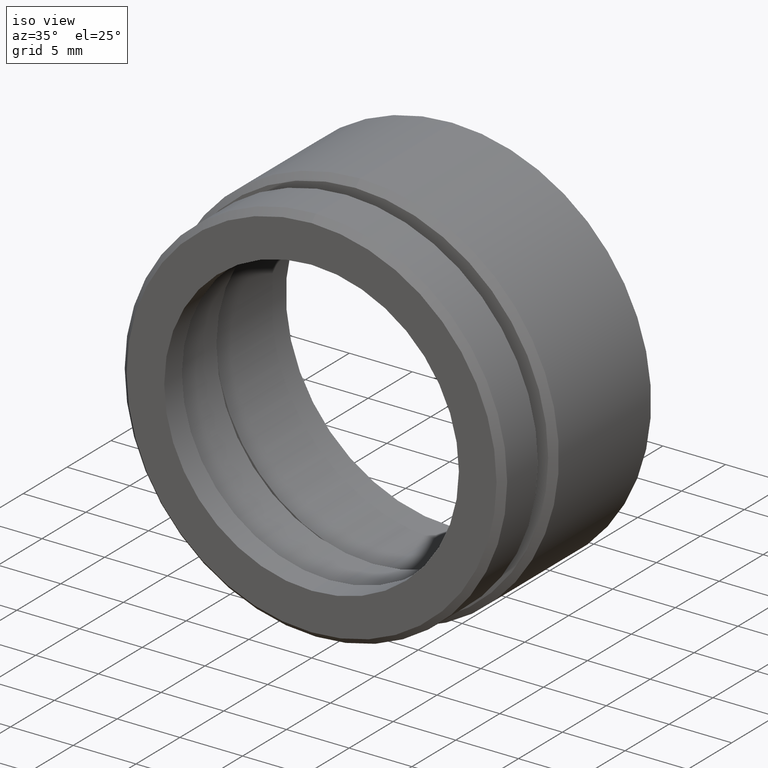
[diagram: clean part render]
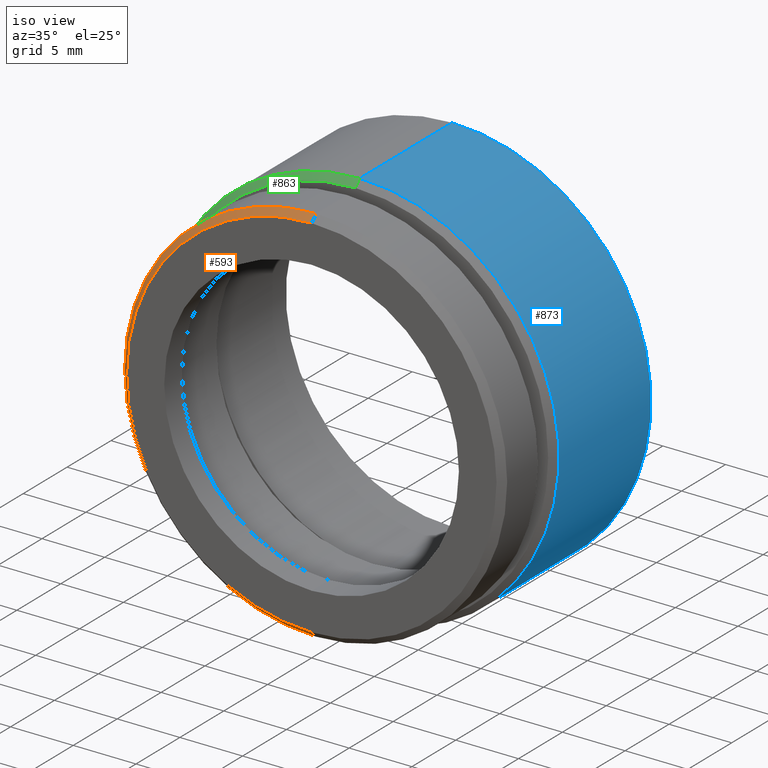
[diagram: same view with three faces highlighted in distinct colors, each labeled with its STEP entity id]
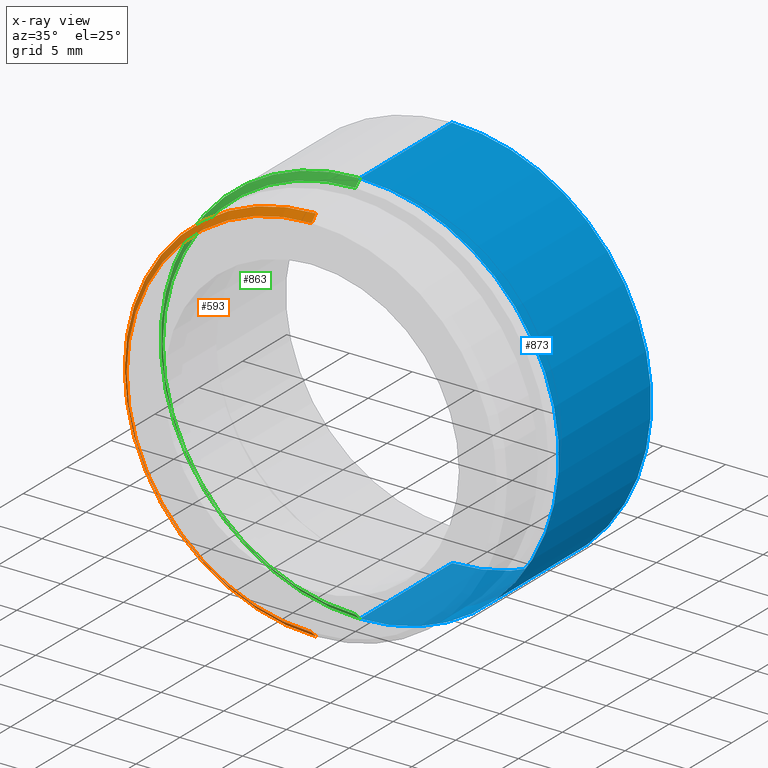
[diagram: x-ray of the same camera — body ghosted, the three highlighted faces saturated]
A machine part, iso view with three faces highlighted in distinct colors.
The next image is the same camera in x-ray (body ghosted, the three faces saturated) — at least one of them is partly hidden behind the body in this view.
Their STEP definitions:

[orange] entity #593 — the highlighted conical surface has half-angle 45 deg.
#5 = EDGE_CURVE ( 'NONE', #318, #41, #322, .T. ) ;
#12 = CARTESIAN_POINT ( 'NONE',  ( 1.836970198721030400E-015, 0.0000000000000000000, -14.75000000000000500 ) ) ;
#39 = EDGE_CURVE ( 'NONE', #509, #318, #248, .T. ) ;
#41 = VERTEX_POINT ( 'NONE', #384 ) ;
#94 = AXIS2_PLACEMENT_3D ( 'NONE', #822, #416, #616 ) ;
#103 = FACE_OUTER_BOUND ( 'NONE', #872, .T. ) ;
#120 = CARTESIAN_POINT ( 'NONE',  ( 1.806354028742346600E-015, 0.0000000000000000000, -14.75000000000000500 ) ) ;
#137 = CARTESIAN_POINT ( 'NONE',  ( 0.0000000000000000000, 0.4999999999999987200, 0.0000000000000000000 ) ) ;
#172 = DIRECTION ( 'NONE',  ( 0.0000000000000000000, 0.0000000000000000000, -1.000000000000000000 ) ) ;
#175 = EDGE_CURVE ( 'NONE', #418, #509, #263, .T. ) ;
#211 = CARTESIAN_POINT ( 'NONE',  ( 0.0000000000000000000, 0.4999999999999987200, -15.25000000000000000 ) ) ;
#248 = LINE ( 'NONE', #120, #430 ) ;
#263 = CIRCLE ( 'NONE', #470, 14.75000000000000500 ) ;
#318 = VERTEX_POINT ( 'NONE', #211 ) ;
#322 = CIRCLE ( 'NONE', #365, 15.25000000000000000 ) ;
#357 = CARTESIAN_POINT ( 'NONE',  ( 0.0000000000000000000, 0.0000000000000000000, 0.0000000000000000000 ) ) ;
#365 = AXIS2_PLACEMENT_3D ( 'NONE', #137, #834, #172 ) ;
#384 = CARTESIAN_POINT ( 'NONE',  ( 1.867586368699713800E-015, 0.4999999999999987200, 15.25000000000000000 ) ) ;
#416 = DIRECTION ( 'NONE',  ( 0.0000000000000000000, 1.000000000000000000, 0.0000000000000000000 ) ) ;
#418 = VERTEX_POINT ( 'NONE', #707 ) ;
#427 = DIRECTION ( 'NONE',  ( 0.0000000000000000000, 0.0000000000000000000, -1.000000000000000000 ) ) ;
#430 = VECTOR ( 'NONE', #642, 1000.000000000000000 ) ;
#461 = EDGE_CURVE ( 'NONE', #418, #41, #734, .T. ) ;
#470 = AXIS2_PLACEMENT_3D ( 'NONE', #357, #679, #427 ) ;
#476 = VECTOR ( 'NONE', #752, 1000.000000000000000 ) ;
#485 = ORIENTED_EDGE ( 'NONE', *, *, #461, .T. ) ;
#509 = VERTEX_POINT ( 'NONE', #12 ) ;
#569 = ORIENTED_EDGE ( 'NONE', *, *, #175, .F. ) ;
#593 = ADVANCED_FACE ( 'NONE', ( #103 ), #767, .T. ) ;
#616 = DIRECTION ( 'NONE',  ( 0.0000000000000000000, 0.0000000000000000000, 1.000000000000000000 ) ) ;
#642 = DIRECTION ( 'NONE',  ( 8.659560562354889700E-017, 0.7071067811865512400, -0.7071067811865439100 ) ) ;
#679 = DIRECTION ( 'NONE',  ( -0.0000000000000000000, -1.000000000000000000, -0.0000000000000000000 ) ) ;
#686 = CARTESIAN_POINT ( 'NONE',  ( 0.0000000000000000000, 0.0000000000000000000, 14.75000000000000500 ) ) ;
#707 = CARTESIAN_POINT ( 'NONE',  ( 0.0000000000000000000, 0.0000000000000000000, 14.75000000000000500 ) ) ;
#734 = LINE ( 'NONE', #686, #476 ) ;
#752 = DIRECTION ( 'NONE',  ( 0.0000000000000000000, 0.7071067811865512400, 0.7071067811865439100 ) ) ;
#767 = CONICAL_SURFACE ( 'NONE', #94, 14.75000000000000500, 0.7853981633974431700 ) ;
#774 = ORIENTED_EDGE ( 'NONE', *, *, #5, .F. ) ;
#822 = CARTESIAN_POINT ( 'NONE',  ( 0.0000000000000000000, 0.0000000000000000000, 0.0000000000000000000 ) ) ;
#834 = DIRECTION ( 'NONE',  ( 0.0000000000000000000, 1.000000000000000000, 0.0000000000000000000 ) ) ;
#861 = ORIENTED_EDGE ( 'NONE', *, *, #39, .F. ) ;
#872 = EDGE_LOOP ( 'NONE', ( #861, #569, #485, #774 ) ) ;

[blue] entity #873 — the highlighted cylindrical surface (partial cylindrical patch) has radius 15.875 mm, axis along (-0, -1, -0).
#46 = VERTEX_POINT ( 'NONE', #857 ) ;
#52 = CYLINDRICAL_SURFACE ( 'NONE', #765, 15.87500000000000000 ) ;
#66 = CIRCLE ( 'NONE', #163, 15.87500000000000000 ) ;
#76 = CIRCLE ( 'NONE', #838, 15.87500000000000000 ) ;
#89 = DIRECTION ( 'NONE',  ( -0.0000000000000000000, -1.000000000000000000, -0.0000000000000000000 ) ) ;
#95 = CARTESIAN_POINT ( 'NONE',  ( 0.0000000000000000000, 5.499999999999997300, -15.87500000000000000 ) ) ;
#121 = VECTOR ( 'NONE', #827, 1000.000000000000000 ) ;
#127 = ORIENTED_EDGE ( 'NONE', *, *, #640, .T. ) ;
#128 = CARTESIAN_POINT ( 'NONE',  ( 0.0000000000000000000, 0.0000000000000000000, 0.0000000000000000000 ) ) ;
#153 = EDGE_CURVE ( 'NONE', #577, #46, #76, .T. ) ;
#163 = AXIS2_PLACEMENT_3D ( 'NONE', #266, #578, #713 ) ;
#165 = ORIENTED_EDGE ( 'NONE', *, *, #282, .F. ) ;
#171 = CARTESIAN_POINT ( 'NONE',  ( 1.944126793646423200E-015, 0.0000000000000000000, 15.87500000000000000 ) ) ;
#183 = VECTOR ( 'NONE', #215, 1000.000000000000000 ) ;
#215 = DIRECTION ( 'NONE',  ( -0.0000000000000000000, -1.000000000000000000, -0.0000000000000000000 ) ) ;
#237 = CARTESIAN_POINT ( 'NONE',  ( 0.0000000000000000000, 0.0000000000000000000, -15.87500000000000000 ) ) ;
#247 = ORIENTED_EDGE ( 'NONE', *, *, #601, .T. ) ;
#266 = CARTESIAN_POINT ( 'NONE',  ( 0.0000000000000000000, 5.499999999999997300, 0.0000000000000000000 ) ) ;
#273 = CARTESIAN_POINT ( 'NONE',  ( 0.0000000000000000000, 15.99999999999999600, 0.0000000000000000000 ) ) ;
#282 = EDGE_CURVE ( 'NONE', #577, #360, #645, .T. ) ;
#305 = FACE_OUTER_BOUND ( 'NONE', #658, .T. ) ;
#360 = VERTEX_POINT ( 'NONE', #95 ) ;
#404 = DIRECTION ( 'NONE',  ( 0.0000000000000000000, 0.0000000000000000000, 1.000000000000000000 ) ) ;
#419 = VERTEX_POINT ( 'NONE', #694 ) ;
#445 = CARTESIAN_POINT ( 'NONE',  ( 0.0000000000000000000, 15.99999999999999600, -15.87500000000000000 ) ) ;
#468 = LINE ( 'NONE', #171, #121 ) ;
#508 = DIRECTION ( 'NONE',  ( -0.0000000000000000000, -1.000000000000000000, -0.0000000000000000000 ) ) ;
#577 = VERTEX_POINT ( 'NONE', #445 ) ;
#578 = DIRECTION ( 'NONE',  ( 0.0000000000000000000, 1.000000000000000000, 0.0000000000000000000 ) ) ;
#596 = DIRECTION ( 'NONE',  ( 0.0000000000000000000, 0.0000000000000000000, -1.000000000000000000 ) ) ;
#601 = EDGE_CURVE ( 'NONE', #419, #360, #66, .T. ) ;
#640 = EDGE_CURVE ( 'NONE', #46, #419, #468, .T. ) ;
#645 = LINE ( 'NONE', #237, #183 ) ;
#658 = EDGE_LOOP ( 'NONE', ( #784, #127, #247, #165 ) ) ;
#694 = CARTESIAN_POINT ( 'NONE',  ( 1.944126793646423200E-015, 5.499999999999997300, 15.87500000000000000 ) ) ;
#713 = DIRECTION ( 'NONE',  ( 0.0000000000000000000, 0.0000000000000000000, -1.000000000000000000 ) ) ;
#765 = AXIS2_PLACEMENT_3D ( 'NONE', #128, #89, #596 ) ;
#784 = ORIENTED_EDGE ( 'NONE', *, *, #153, .T. ) ;
#827 = DIRECTION ( 'NONE',  ( -0.0000000000000000000, -1.000000000000000000, -0.0000000000000000000 ) ) ;
#838 = AXIS2_PLACEMENT_3D ( 'NONE', #273, #508, #404 ) ;
#857 = CARTESIAN_POINT ( 'NONE',  ( 1.944126793646423200E-015, 15.99999999999999600, 15.87500000000000000 ) ) ;
#873 = ADVANCED_FACE ( 'NONE', ( #305 ), #52, .T. ) ;

[green] entity #863 — the highlighted conical surface has half-angle 45 deg.
#17 = ORIENTED_EDGE ( 'NONE', *, *, #413, .F. ) ;
#84 = DIRECTION ( 'NONE',  ( 0.0000000000000000000, 0.0000000000000000000, -1.000000000000000000 ) ) ;
#95 = CARTESIAN_POINT ( 'NONE',  ( 0.0000000000000000000, 5.499999999999997300, -15.87500000000000000 ) ) ;
#98 = ORIENTED_EDGE ( 'NONE', *, *, #687, .F. ) ;
#118 = EDGE_CURVE ( 'NONE', #360, #419, #119, .T. ) ;
#119 = CIRCLE ( 'NONE', #498, 15.87500000000000000 ) ;
#169 = ORIENTED_EDGE ( 'NONE', *, *, #735, .T. ) ;
#178 = AXIS2_PLACEMENT_3D ( 'NONE', #714, #705, #725 ) ;
#194 = CIRCLE ( 'NONE', #178, 15.37500000000000000 ) ;
#206 = DIRECTION ( 'NONE',  ( 0.0000000000000000000, 0.7071067811865451300, 0.7071067811865500200 ) ) ;
#231 = ORIENTED_EDGE ( 'NONE', *, *, #118, .F. ) ;
#259 = VERTEX_POINT ( 'NONE', #294 ) ;
#289 = CARTESIAN_POINT ( 'NONE',  ( 0.0000000000000000000, 5.000000000000000000, 0.0000000000000000000 ) ) ;
#294 = CARTESIAN_POINT ( 'NONE',  ( 1.913510623667739500E-015, 5.000000000000000000, -15.37500000000000000 ) ) ;
#300 = DIRECTION ( 'NONE',  ( 0.0000000000000000000, 0.0000000000000000000, 1.000000000000000000 ) ) ;
#306 = DIRECTION ( 'NONE',  ( 0.0000000000000000000, 1.000000000000000000, 0.0000000000000000000 ) ) ;
#324 = LINE ( 'NONE', #493, #581 ) ;
#344 = EDGE_LOOP ( 'NONE', ( #98, #17, #169, #231 ) ) ;
#360 = VERTEX_POINT ( 'NONE', #95 ) ;
#403 = VECTOR ( 'NONE', #434, 1000.000000000000100 ) ;
#413 = EDGE_CURVE ( 'NONE', #606, #259, #194, .T. ) ;
#419 = VERTEX_POINT ( 'NONE', #694 ) ;
#434 = DIRECTION ( 'NONE',  ( 8.659560562354962400E-017, 0.7071067811865451300, -0.7071067811865500200 ) ) ;
#473 = CARTESIAN_POINT ( 'NONE',  ( 1.882894453689055700E-015, 5.000000000000000000, -15.37500000000000000 ) ) ;
#492 = LINE ( 'NONE', #473, #403 ) ;
#493 = CARTESIAN_POINT ( 'NONE',  ( 0.0000000000000000000, 5.000000000000000000, 15.37500000000000000 ) ) ;
#496 = DIRECTION ( 'NONE',  ( 0.0000000000000000000, 1.000000000000000000, 0.0000000000000000000 ) ) ;
#498 = AXIS2_PLACEMENT_3D ( 'NONE', #718, #306, #84 ) ;
#510 = CONICAL_SURFACE ( 'NONE', #805, 15.37500000000000000, 0.7853981633974517200 ) ;
#548 = FACE_OUTER_BOUND ( 'NONE', #344, .T. ) ;
#581 = VECTOR ( 'NONE', #206, 1000.000000000000100 ) ;
#606 = VERTEX_POINT ( 'NONE', #869 ) ;
#687 = EDGE_CURVE ( 'NONE', #259, #360, #492, .T. ) ;
#694 = CARTESIAN_POINT ( 'NONE',  ( 1.944126793646423200E-015, 5.499999999999997300, 15.87500000000000000 ) ) ;
#705 = DIRECTION ( 'NONE',  ( -0.0000000000000000000, -1.000000000000000000, -0.0000000000000000000 ) ) ;
#714 = CARTESIAN_POINT ( 'NONE',  ( 0.0000000000000000000, 5.000000000000000000, 0.0000000000000000000 ) ) ;
#718 = CARTESIAN_POINT ( 'NONE',  ( 0.0000000000000000000, 5.499999999999997300, 0.0000000000000000000 ) ) ;
#725 = DIRECTION ( 'NONE',  ( 0.0000000000000000000, 0.0000000000000000000, -1.000000000000000000 ) ) ;
#735 = EDGE_CURVE ( 'NONE', #606, #419, #324, .T. ) ;
#805 = AXIS2_PLACEMENT_3D ( 'NONE', #289, #496, #300 ) ;
#863 = ADVANCED_FACE ( 'NONE', ( #548 ), #510, .T. ) ;
#869 = CARTESIAN_POINT ( 'NONE',  ( 0.0000000000000000000, 5.000000000000000000, 15.37500000000000000 ) ) ;